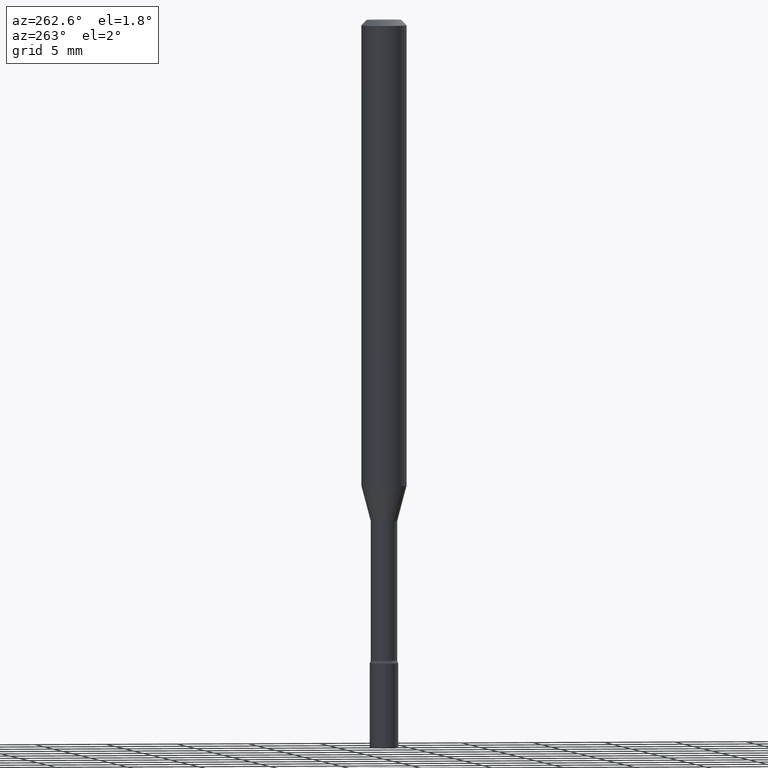
[diagram: clean part render]
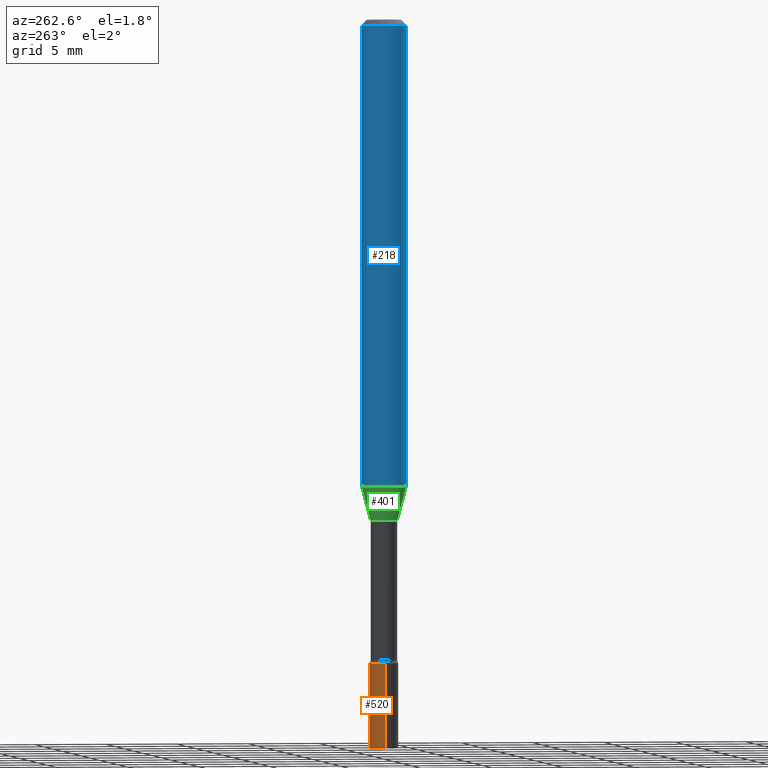
[diagram: same view with three faces highlighted in distinct colors, each labeled with its STEP entity id]
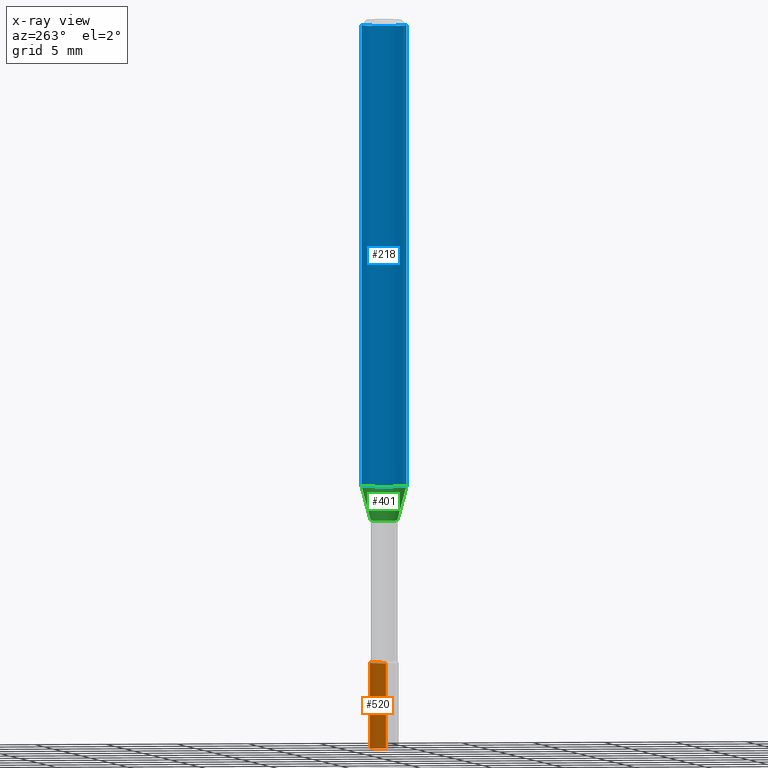
[diagram: x-ray of the same camera — body ghosted, the three highlighted faces saturated]
A machine part, auxiliary view with three faces highlighted in distinct colors.
The next image is the same camera in x-ray (body ghosted, the three faces saturated) — at least one of them is partly hidden behind the body in this view.
Their STEP definitions:

[orange] entity #520 — the highlighted cylindrical surface (edge-blend (fillet) strip) has radius 0.9906 mm, axis along (-0, 0, 1).
#20 = DIRECTION ( 'NONE',  ( -2.445468806185136597E-29, 3.491481338843145583E-15, 1.000000000000000000 ) ) ;
#32 = LINE ( 'NONE', #466, #340 ) ;
#36 = VERTEX_POINT ( 'NONE', #317 ) ;
#37 = VERTEX_POINT ( 'NONE', #294 ) ;
#44 = AXIS2_PLACEMENT_3D ( 'NONE', #93, #411, #117 ) ;
#59 = EDGE_CURVE ( 'NONE', #36, #37, #516, .T. ) ;
#89 = ORIENTED_EDGE ( 'NONE', *, *, #295, .F. ) ;
#90 = CARTESIAN_POINT ( 'NONE',  ( 4.890937612370273194E-29, -6.982962677686291165E-15, -2.000000000000000000 ) ) ;
#93 = CARTESIAN_POINT ( 'NONE',  ( 4.318697911722950844E-29, -6.165956044396995152E-15, -1.766000000000000014 ) ) ;
#103 = LINE ( 'NONE', #145, #415 ) ;
#117 = DIRECTION ( 'NONE',  ( 1.000000000000000000, -6.982962677686258033E-15, 0.000000000000000000 ) ) ;
#138 = DIRECTION ( 'NONE',  ( 1.000000000000000000, -6.982962677686265922E-15, 4.876176775795935793E-29 ) ) ;
#145 = CARTESIAN_POINT ( 'NONE',  ( -0.03899999999999999994, 2.771116669464390721E-16, -1.918384685199413078E-30 ) ) ;
#184 = DIRECTION ( 'NONE',  ( 1.000000000000000000, -6.982962677686258033E-15, 0.000000000000000000 ) ) ;
#207 = CARTESIAN_POINT ( 'NONE',  ( 0.000000000000000000, 0.000000000000000000, 0.000000000000000000 ) ) ;
#225 = DIRECTION ( 'NONE',  ( -2.445468806185136877E-29, 3.491481338843145188E-15, 1.000000000000000000 ) ) ;
#232 = VERTEX_POINT ( 'NONE', #349 ) ;
#234 = AXIS2_PLACEMENT_3D ( 'NONE', #207, #492, #138 ) ;
#244 = AXIS2_PLACEMENT_3D ( 'NONE', #90, #20, #184 ) ;
#263 = DIRECTION ( 'NONE',  ( -2.445468806185136877E-29, 3.491481338843145188E-15, 1.000000000000000000 ) ) ;
#294 = CARTESIAN_POINT ( 'NONE',  ( -0.03899999999999999994, -6.297347694095203445E-15, -1.766000000000000014 ) ) ;
#295 = EDGE_CURVE ( 'NONE', #232, #36, #32, .T. ) ;
#317 = CARTESIAN_POINT ( 'NONE',  ( 0.03899999999999999994, -6.438291588826759175E-15, -1.766000000000000014 ) ) ;
#331 = EDGE_CURVE ( 'NONE', #232, #514, #471, .T. ) ;
#340 = VECTOR ( 'NONE', #225, 39.37007874015748143 ) ;
#343 = CARTESIAN_POINT ( 'NONE',  ( -0.03899999999999999994, -6.297347694095203445E-15, -2.000000000000000000 ) ) ;
#349 = CARTESIAN_POINT ( 'NONE',  ( 0.03899999999999999994, -7.255298222116054399E-15, -2.000000000000000000 ) ) ;
#367 = ORIENTED_EDGE ( 'NONE', *, *, #331, .T. ) ;
#379 = CYLINDRICAL_SURFACE ( 'NONE', #234, 0.03899999999999999994 ) ;
#385 = EDGE_CURVE ( 'NONE', #514, #37, #103, .T. ) ;
#411 = DIRECTION ( 'NONE',  ( -2.445468806185136597E-29, 3.491481338843145583E-15, 1.000000000000000000 ) ) ;
#415 = VECTOR ( 'NONE', #263, 39.37007874015748143 ) ;
#423 = FACE_OUTER_BOUND ( 'NONE', #432, .T. ) ;
#432 = EDGE_LOOP ( 'NONE', ( #367, #445, #475, #89 ) ) ;
#445 = ORIENTED_EDGE ( 'NONE', *, *, #385, .T. ) ;
#466 = CARTESIAN_POINT ( 'NONE',  ( 0.03899999999999999994, -2.723355444297643682E-16, 1.901708942560414931E-30 ) ) ;
#471 = CIRCLE ( 'NONE', #244, 0.03899999999999999994 ) ;
#475 = ORIENTED_EDGE ( 'NONE', *, *, #59, .F. ) ;
#492 = DIRECTION ( 'NONE',  ( -2.445468806185136597E-29, 3.491481338843145583E-15, 1.000000000000000000 ) ) ;
#514 = VERTEX_POINT ( 'NONE', #343 ) ;
#516 = CIRCLE ( 'NONE', #44, 0.03899999999999999994 ) ;
#520 = ADVANCED_FACE ( 'NONE', ( #423 ), #379, .T. ) ;

[blue] entity #218 — the highlighted cylindrical surface (edge-blend (fillet) strip) has radius 1.5875 mm, axis along (-0, 0, 1).
#1 = ORIENTED_EDGE ( 'NONE', *, *, #40, .F. ) ;
#2 = CARTESIAN_POINT ( 'NONE',  ( -4.364351673553912750E-16, -0.06250000000000005551, -0.01499999999999981209 ) ) ;
#21 = VERTEX_POINT ( 'NONE', #2 ) ;
#28 = CARTESIAN_POINT ( 'NONE',  ( -4.364351673553916201E-16, -0.06250000000000000000, 2.182197749542198527E-16 ) ) ;
#34 = EDGE_CURVE ( 'NONE', #371, #470, #88, .T. ) ;
#40 = EDGE_CURVE ( 'NONE', #470, #21, #121, .T. ) ;
#48 = DIRECTION ( 'NONE',  ( -6.982962677686265922E-15, -1.000000000000000000, 3.491516399267517644E-15 ) ) ;
#78 = ORIENTED_EDGE ( 'NONE', *, *, #182, .T. ) ;
#83 = FACE_OUTER_BOUND ( 'NONE', #338, .T. ) ;
#88 = LINE ( 'NONE', #249, #448 ) ;
#110 = DIRECTION ( 'NONE',  ( -2.445444323621651242E-29, 3.491516399267517644E-15, 1.000000000000000000 ) ) ;
#121 = CIRCLE ( 'NONE', #221, 0.06250000000000000000 ) ;
#128 = CYLINDRICAL_SURFACE ( 'NONE', #223, 0.06250000000000000000 ) ;
#140 = CARTESIAN_POINT ( 'NONE',  ( 4.440892098500935790E-16, 0.06249999999999550360, -1.279526486624345205 ) ) ;
#163 = ORIENTED_EDGE ( 'NONE', *, *, #305, .T. ) ;
#181 = VECTOR ( 'NONE', #110, 39.37007874015748143 ) ;
#182 = EDGE_CURVE ( 'NONE', #371, #402, #426, .T. ) ;
#191 = ORIENTED_EDGE ( 'NONE', *, *, #34, .F. ) ;
#209 = DIRECTION ( 'NONE',  ( -2.445444323621651242E-29, 3.491516399267517644E-15, 1.000000000000000000 ) ) ;
#218 = ADVANCED_FACE ( 'NONE', ( #83 ), #128, .T. ) ;
#221 = AXIS2_PLACEMENT_3D ( 'NONE', #373, #209, #453 ) ;
#223 = AXIS2_PLACEMENT_3D ( 'NONE', #243, #408, #48 ) ;
#243 = CARTESIAN_POINT ( 'NONE',  ( 0.000000000000000000, 0.000000000000000000, 0.000000000000000000 ) ) ;
#245 = DIRECTION ( 'NONE',  ( -2.445444323621651242E-29, 3.491516399267517644E-15, 1.000000000000000000 ) ) ;
#249 = CARTESIAN_POINT ( 'NONE',  ( 4.440892098500625669E-16, 0.06250000000000000000, -2.182197749542198527E-16 ) ) ;
#305 = EDGE_CURVE ( 'NONE', #402, #21, #465, .T. ) ;
#322 = AXIS2_PLACEMENT_3D ( 'NONE', #419, #481, #519 ) ;
#338 = EDGE_LOOP ( 'NONE', ( #191, #78, #163, #1 ) ) ;
#371 = VERTEX_POINT ( 'NONE', #140 ) ;
#373 = CARTESIAN_POINT ( 'NONE',  ( 3.668166485432484237E-31, -5.237274598901286943E-17, -0.01500000000000003067 ) ) ;
#393 = CARTESIAN_POINT ( 'NONE',  ( -4.364351673553606080E-16, -0.06250000000000449640, -1.279526486624344539 ) ) ;
#402 = VERTEX_POINT ( 'NONE', #393 ) ;
#408 = DIRECTION ( 'NONE',  ( -2.445444323621651242E-29, 3.491516399267517644E-15, 1.000000000000000000 ) ) ;
#419 = CARTESIAN_POINT ( 'NONE',  ( 3.129010783639058440E-29, -4.467487711346049103E-15, -1.279526486624344761 ) ) ;
#426 = CIRCLE ( 'NONE', #322, 0.06250000000000000000 ) ;
#448 = VECTOR ( 'NONE', #245, 39.37007874015748143 ) ;
#453 = DIRECTION ( 'NONE',  ( -6.982962677686265922E-15, -1.000000000000000000, 3.483106191921935554E-15 ) ) ;
#465 = LINE ( 'NONE', #28, #181 ) ;
#470 = VERTEX_POINT ( 'NONE', #513 ) ;
#481 = DIRECTION ( 'NONE',  ( -2.445444323621651242E-29, 3.491516399267517644E-15, 1.000000000000000000 ) ) ;
#513 = CARTESIAN_POINT ( 'NONE',  ( 4.440892098500940720E-16, 0.06249999999999995143, -0.01500000000000024751 ) ) ;
#519 = DIRECTION ( 'NONE',  ( -6.982962677686265922E-15, -1.000000000000000000, 4.370956789862821150E-15 ) ) ;

[green] entity #401 — the highlighted conical surface has half-angle 15 deg.
#14 = DIRECTION ( 'NONE',  ( -2.445444323621651242E-29, 3.491516399267517644E-15, 1.000000000000000000 ) ) ;
#31 = ORIENTED_EDGE ( 'NONE', *, *, #515, .T. ) ;
#39 = ORIENTED_EDGE ( 'NONE', *, *, #344, .F. ) ;
#52 = VECTOR ( 'NONE', #323, 39.37007874015749564 ) ;
#62 = FACE_OUTER_BOUND ( 'NONE', #80, .T. ) ;
#68 = ORIENTED_EDGE ( 'NONE', *, *, #182, .F. ) ;
#80 = EDGE_LOOP ( 'NONE', ( #39, #31, #226, #68 ) ) ;
#101 = CARTESIAN_POINT ( 'NONE',  ( 3.360266708626760851E-29, -4.797666504100794371E-15, -1.374092501787273157 ) ) ;
#113 = CIRCLE ( 'NONE', #159, 0.03716111260566398733 ) ;
#120 = DIRECTION ( 'NONE',  ( -2.445444323621651242E-29, 3.491516399267517644E-15, 1.000000000000000000 ) ) ;
#140 = CARTESIAN_POINT ( 'NONE',  ( 4.440892098500935790E-16, 0.06249999999999550360, -1.279526486624345205 ) ) ;
#143 = CARTESIAN_POINT ( 'NONE',  ( 3.540673979986520218E-16, 0.03716111260565919255, -1.374092501787273157 ) ) ;
#144 = LINE ( 'NONE', #312, #148 ) ;
#148 = VECTOR ( 'NONE', #355, 39.37007874015748143 ) ;
#159 = AXIS2_PLACEMENT_3D ( 'NONE', #101, #14, #493 ) ;
#182 = EDGE_CURVE ( 'NONE', #371, #402, #426, .T. ) ;
#188 = CARTESIAN_POINT ( 'NONE',  ( -2.594946623866146563E-16, -0.03716111260566878904, -1.374092501787273157 ) ) ;
#226 = ORIENTED_EDGE ( 'NONE', *, *, #314, .T. ) ;
#236 = LINE ( 'NONE', #321, #52 ) ;
#285 = VERTEX_POINT ( 'NONE', #143 ) ;
#312 = CARTESIAN_POINT ( 'NONE',  ( 2.640455861472099224E-16, 0.03716111260565919255, -1.374092501787273157 ) ) ;
#314 = EDGE_CURVE ( 'NONE', #410, #402, #236, .T. ) ;
#316 = CONICAL_SURFACE ( 'NONE', #437, 0.03716111260566398733, 0.2617993877991501850 ) ;
#320 = CARTESIAN_POINT ( 'NONE',  ( 3.360266708626760851E-29, -4.797666504100794371E-15, -1.374092501787273157 ) ) ;
#321 = CARTESIAN_POINT ( 'NONE',  ( -2.594946623866146563E-16, -0.03716111260566878904, -1.374092501787273157 ) ) ;
#322 = AXIS2_PLACEMENT_3D ( 'NONE', #419, #481, #519 ) ;
#323 = DIRECTION ( 'NONE',  ( -1.807323732225329350E-15, -0.2588190451025180194, 0.9659258262890689783 ) ) ;
#344 = EDGE_CURVE ( 'NONE', #285, #371, #144, .T. ) ;
#355 = DIRECTION ( 'NONE',  ( 1.839019923739599526E-15, 0.2588190451025248473, 0.9659258262890670910 ) ) ;
#371 = VERTEX_POINT ( 'NONE', #140 ) ;
#393 = CARTESIAN_POINT ( 'NONE',  ( -4.364351673553606080E-16, -0.06250000000000449640, -1.279526486624344539 ) ) ;
#401 = ADVANCED_FACE ( 'NONE', ( #62 ), #316, .T. ) ;
#402 = VERTEX_POINT ( 'NONE', #393 ) ;
#410 = VERTEX_POINT ( 'NONE', #188 ) ;
#419 = CARTESIAN_POINT ( 'NONE',  ( 3.129010783639058440E-29, -4.467487711346049103E-15, -1.279526486624344761 ) ) ;
#426 = CIRCLE ( 'NONE', #322, 0.06250000000000000000 ) ;
#437 = AXIS2_PLACEMENT_3D ( 'NONE', #320, #120, #505 ) ;
#481 = DIRECTION ( 'NONE',  ( -2.445444323621651242E-29, 3.491516399267517644E-15, 1.000000000000000000 ) ) ;
#493 = DIRECTION ( 'NONE',  ( -6.982962677686266711E-15, -1.000000000000000000, 0.000000000000000000 ) ) ;
#505 = DIRECTION ( 'NONE',  ( -6.982962677686266711E-15, -1.000000000000000000, 0.000000000000000000 ) ) ;
#515 = EDGE_CURVE ( 'NONE', #285, #410, #113, .T. ) ;
#519 = DIRECTION ( 'NONE',  ( -6.982962677686265922E-15, -1.000000000000000000, 4.370956789862821150E-15 ) ) ;